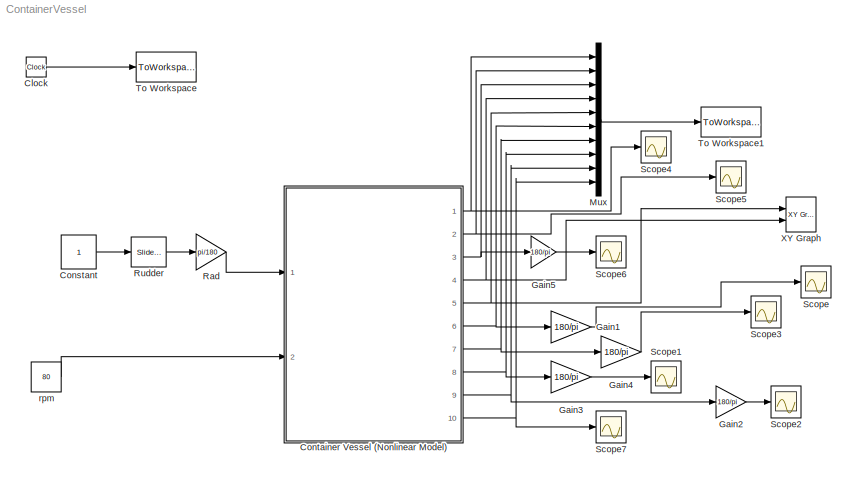
MODEL ContainerVessel
KIND model
BLOCK [Clock] Clock
  Decimation = 10
BLOCK [Constant] Constant
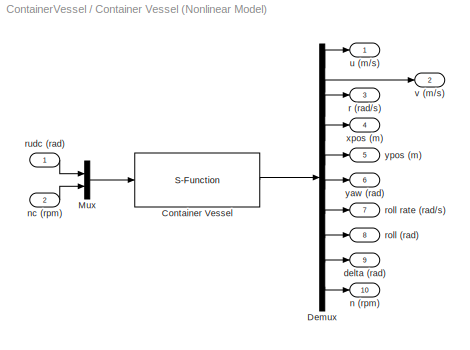
BLOCK [SubSystem] Container Vessel (Nonlinear Model)
  MaskHideContents = off
  MinAlgLoopOccurrences = off
  Ports = [2, 10]
  RTWSystemCode = Auto
  TreatAsAtomicUnit = off
BLOCK [S-Function] Container Vessel (Nonlinear Model)/Container Vessel
  FunctionName = ContainerModel
  MaskIconFrame = on
  MaskIconOpaque = on
  MaskIconRotate = none
  MaskIconUnits = autoscale
  Ports = [1, 1]
BLOCK [Demux] Container Vessel (Nonlinear Model)/Demux
  DisplayOption = bar
  Outputs = 10
  Ports = [1, 10]
BLOCK [Mux] Container Vessel (Nonlinear Model)/Mux
  DisplayOption = bar
  Inputs = 2
  Ports = [2, 1]
BLOCK [Outport] Container Vessel (Nonlinear Model)/delta (rad)
  BusOutputAsStruct = off
  IconDisplay = Port number
  Port = 9
BLOCK [Outport] Container Vessel (Nonlinear Model)/n (rpm)
  BusOutputAsStruct = off
  IconDisplay = Port number
  Port = 10
BLOCK [Inport] Container Vessel (Nonlinear Model)/nc (rpm)
  IconDisplay = Port number
  Port = 2
BLOCK [Outport] Container Vessel (Nonlinear Model)/r (rad//s)
  BusOutputAsStruct = off
  IconDisplay = Port number
  Port = 3
BLOCK [Outport] Container Vessel (Nonlinear Model)/roll (rad)
  BusOutputAsStruct = off
  IconDisplay = Port number
  Port = 8
BLOCK [Outport] Container Vessel (Nonlinear Model)/roll rate (rad//s)
  BusOutputAsStruct = off
  IconDisplay = Port number
  Port = 7
BLOCK [Inport] Container Vessel (Nonlinear Model)/rudc (rad)
  IconDisplay = Port number
BLOCK [Outport] Container Vessel (Nonlinear Model)/u (m//s)
  BusOutputAsStruct = off
  IconDisplay = Port number
BLOCK [Outport] Container Vessel (Nonlinear Model)/v (m//s)
  BusOutputAsStruct = off
  IconDisplay = Port number
  Port = 2
BLOCK [Outport] Container Vessel (Nonlinear Model)/xpos (m)
  BusOutputAsStruct = off
  IconDisplay = Port number
  Port = 4
BLOCK [Outport] Container Vessel (Nonlinear Model)/yaw (rad)
  BusOutputAsStruct = off
  IconDisplay = Port number
  Port = 6
BLOCK [Outport] Container Vessel (Nonlinear Model)/ypos (m)
  BusOutputAsStruct = off
  IconDisplay = Port number
  Port = 5
BLOCK [Gain] Gain1
  Gain = 180/pi
  OutDataTypeMode = Inherit via internal rule
  ParameterDataTypeMode = Inherit via internal rule
  SaturateOnIntegerOverflow = off
BLOCK [Gain] Gain2
  Gain = 180/pi
  OutDataTypeMode = Inherit via internal rule
  ParameterDataTypeMode = Inherit via internal rule
  SaturateOnIntegerOverflow = off
BLOCK [Gain] Gain3
  Gain = 180/pi
  OutDataTypeMode = Inherit via internal rule
  ParameterDataTypeMode = Inherit via internal rule
  SaturateOnIntegerOverflow = off
BLOCK [Gain] Gain4
  Gain = 180/pi
  OutDataTypeMode = Inherit via internal rule
  ParameterDataTypeMode = Inherit via internal rule
  SaturateOnIntegerOverflow = off
BLOCK [Gain] Gain5
  Gain = 180/pi
  OutDataTypeMode = Inherit via internal rule
  ParameterDataTypeMode = Inherit via internal rule
  SaturateOnIntegerOverflow = off
BLOCK [Mux] Mux
  DisplayOption = bar
  Inputs = 10
  Ports = [10, 1]
BLOCK [Gain] Rad
  Gain = pi/180
BLOCK [Reference] Rudder  REF=simulink/Math\nOperations/Slider\nGain
  Ports = [1, 1]
  ShowPortLabels = on
  SourceBlock = simulink/Math\nOperations/Slider\nGain
  SourceType = Slider Gain
  gain = 20
  high = 360
  low = 0
BLOCK [Scope] Scope
  DataFormat = StructureWithTime
  Floating = off
  NumInputPorts = 1
  Ports = [1]
  SampleTime = 0
BLOCK [Scope] Scope1
  DataFormat = StructureWithTime
  Floating = off
  NumInputPorts = 1
  Ports = [1]
  SampleTime = 0
  SaveName = ScopeData1
  YMax = 1
  YMin = -9
BLOCK [Scope] Scope2
  DataFormat = StructureWithTime
  Floating = off
  NumInputPorts = 1
  Ports = [1]
  SampleTime = 0
  SaveName = ScopeData2
BLOCK [Scope] Scope3
  DataFormat = StructureWithTime
  Floating = off
  NumInputPorts = 1
  Ports = [1]
  SampleTime = 0
  SaveName = ScopeData3
BLOCK [Scope] Scope4
  DataFormat = StructureWithTime
  Floating = off
  NumInputPorts = 1
  Ports = [1]
  SampleTime = 0
  SaveName = ScopeData4
  YMax = 1
  YMin = -9
BLOCK [Scope] Scope5
  DataFormat = StructureWithTime
  Floating = off
  NumInputPorts = 1
  Ports = [1]
  SampleTime = 0
  SaveName = ScopeData5
  YMax = 1
  YMin = -9
BLOCK [Scope] Scope6
  DataFormat = StructureWithTime
  Floating = off
  NumInputPorts = 1
  Ports = [1]
  SampleTime = 0
  SaveName = ScopeData6
  YMax = 1
  YMin = -9
BLOCK [Scope] Scope7
  DataFormat = StructureWithTime
  Floating = off
  NumInputPorts = 1
  Ports = [1]
  SampleTime = 0
  SaveName = ScopeData7
BLOCK [ToWorkspace] To Workspace
  MaxDataPoints = inf
  SampleTime = -1
  SaveFormat = Array
  VariableName = t
BLOCK [ToWorkspace] To Workspace1
  Decimation = 2
  MaxDataPoints = inf
  SampleTime = -1
  SaveFormat = Array
  VariableName = data
BLOCK [Reference] XY Graph  REF=simulink/Sinks/XY Graph
  Ports = [2]
  ShowPortLabels = on
  SourceBlock = simulink/Sinks/XY Graph
  SourceType = XY scope.
  st = -1
  xmax = 2000
  xmin = -1000
  ymax = 2000
  ymin = -1000
BLOCK [Constant] rpm
  Value = 80
LINE Clock:1 -> To Workspace:1
LINE Constant:1 -> Rudder:1
LINE Container Vessel (Nonlinear Model)/Container Vessel:1 -> Container Vessel (Nonlinear Model)/Demux:1
LINE Container Vessel (Nonlinear Model)/Demux:1 -> Container Vessel (Nonlinear Model)/u (m//s):1
LINE Container Vessel (Nonlinear Model)/Demux:10 -> Container Vessel (Nonlinear Model)/n (rpm):1
LINE Container Vessel (Nonlinear Model)/Demux:2 -> Container Vessel (Nonlinear Model)/v (m//s):1
LINE Container Vessel (Nonlinear Model)/Demux:3 -> Container Vessel (Nonlinear Model)/r (rad//s):1
LINE Container Vessel (Nonlinear Model)/Demux:4 -> Container Vessel (Nonlinear Model)/xpos (m):1
LINE Container Vessel (Nonlinear Model)/Demux:5 -> Container Vessel (Nonlinear Model)/ypos (m):1
LINE Container Vessel (Nonlinear Model)/Demux:6 -> Container Vessel (Nonlinear Model)/yaw (rad):1
LINE Container Vessel (Nonlinear Model)/Demux:7 -> Container Vessel (Nonlinear Model)/roll rate (rad//s):1
LINE Container Vessel (Nonlinear Model)/Demux:8 -> Container Vessel (Nonlinear Model)/roll (rad):1
LINE Container Vessel (Nonlinear Model)/Demux:9 -> Container Vessel (Nonlinear Model)/delta (rad):1
LINE Container Vessel (Nonlinear Model)/Mux:1 -> Container Vessel (Nonlinear Model)/Container Vessel:1
LINE Container Vessel (Nonlinear Model)/nc (rpm):1 -> Container Vessel (Nonlinear Model)/Mux:2
LINE Container Vessel (Nonlinear Model)/rudc (rad):1 -> Container Vessel (Nonlinear Model)/Mux:1
NET Container Vessel (Nonlinear Model):1 -> Mux:1, Scope4:1
NET Container Vessel (Nonlinear Model):10 -> Mux:10, Scope7:1
NET Container Vessel (Nonlinear Model):2 -> Mux:2, Scope5:1
NET Container Vessel (Nonlinear Model):3 -> Gain5:1, Mux:3
NET Container Vessel (Nonlinear Model):4 -> Mux:4, XY Graph:2
NET Container Vessel (Nonlinear Model):5 -> Mux:5, XY Graph:1
NET Container Vessel (Nonlinear Model):6 -> Gain1:1, Mux:6
NET Container Vessel (Nonlinear Model):7 -> Gain4:1, Mux:7
NET Container Vessel (Nonlinear Model):8 -> Gain3:1, Mux:8
NET Container Vessel (Nonlinear Model):9 -> Gain2:1, Mux:9
LINE Gain1:1 -> Scope:1
LINE Gain2:1 -> Scope2:1
LINE Gain3:1 -> Scope1:1
LINE Gain4:1 -> Scope3:1
LINE Gain5:1 -> Scope6:1
LINE Mux:1 -> To Workspace1:1
LINE Rad:1 -> Container Vessel (Nonlinear Model):1
LINE Rudder:1 -> Rad:1
LINE rpm:1 -> Container Vessel (Nonlinear Model):2
note: NET lines group one-source signal fan-out (src -> all destinations, sorted); 1:1 wires keep LINE
